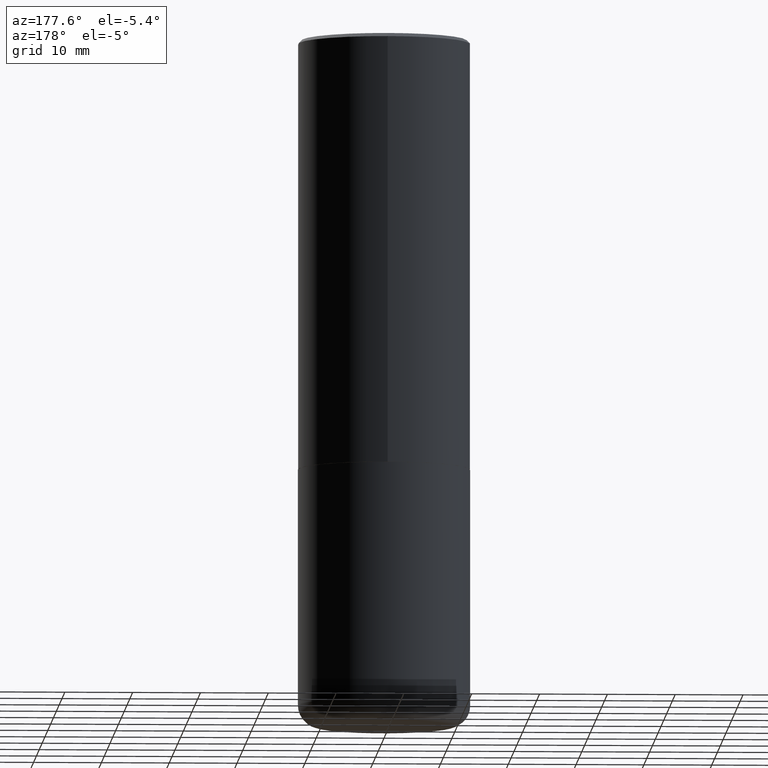
[diagram: clean part render]
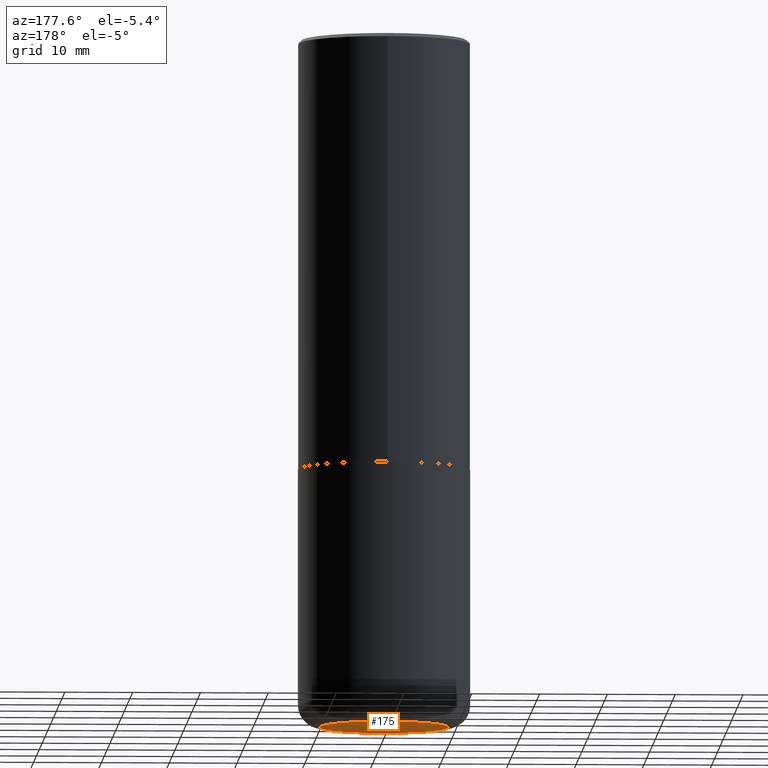
[diagram: same view with one face highlighted and labeled with its STEP entity id]
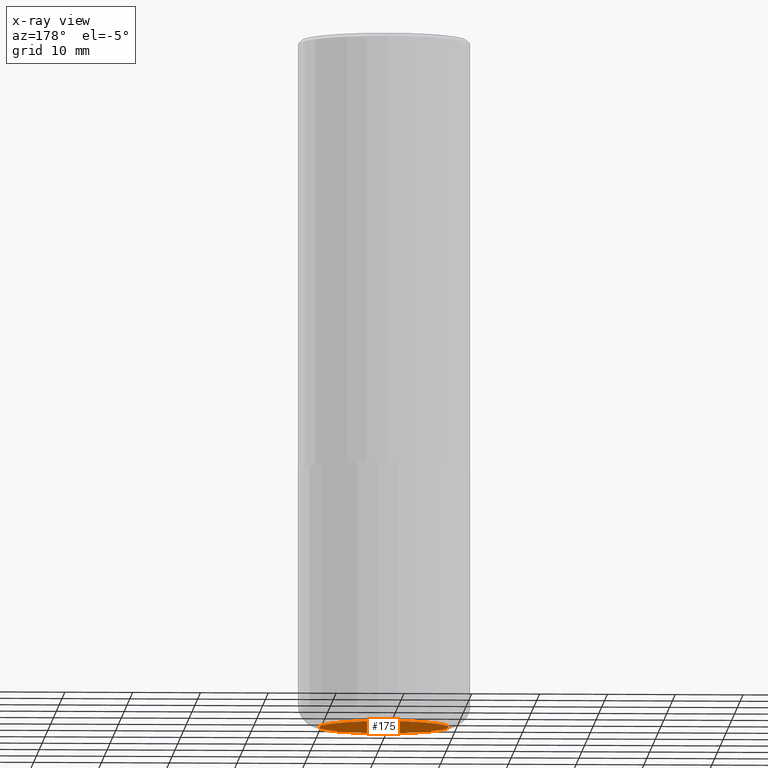
[diagram: x-ray of the same camera — body ghosted, the highlighted face saturated]
A machine part, auxiliary view. The second image highlights one B-rep face of the part: STEP entity #175.
The next image is the same camera in x-ray: the body ghosted, the highlighted face saturated — about 0% of this face is hidden behind the body in this view.
In plain terms, the highlighted planar face has unit normal (0, -0, -1).
Its self-contained STEP definition (entity closure, byte-faithful):
#49 = AXIS2_PLACEMENT_3D ( 'NONE', #301, #145, #305 ) ;
#71 = AXIS2_PLACEMENT_3D ( 'NONE', #203, #411, #200 ) ;
#143 = CARTESIAN_POINT ( 'NONE',  ( 0.3749999999999999445, -1.658453635950493392E-14, -4.000000000000000000 ) ) ;
#145 = DIRECTION ( 'NONE',  ( -2.445468806185136597E-29, 3.491481338843145583E-15, 1.000000000000000000 ) ) ;
#163 = EDGE_CURVE ( 'NONE', #315, #188, #394, .T. ) ;
#175 = ADVANCED_FACE ( 'NONE', ( #194 ), #319, .T. ) ;
#176 = CIRCLE ( 'NONE', #49, 0.3749999999999999445 ) ;
#179 = CARTESIAN_POINT ( 'NONE',  ( -0.3749999999999999445, -1.063908330274444739E-14, -4.000000000000000000 ) ) ;
#188 = VERTEX_POINT ( 'NONE', #143 ) ;
#194 = FACE_OUTER_BOUND ( 'NONE', #254, .T. ) ;
#200 = DIRECTION ( 'NONE',  ( 1.000000000000000000, -6.982962677686269077E-15, 0.000000000000000000 ) ) ;
#203 = CARTESIAN_POINT ( 'NONE',  ( 9.781875224740546387E-29, -1.396592535537258233E-14, -4.000000000000000000 ) ) ;
#234 = ORIENTED_EDGE ( 'NONE', *, *, #296, .F. ) ;
#252 = AXIS2_PLACEMENT_3D ( 'NONE', #326, #321, #386 ) ;
#254 = EDGE_LOOP ( 'NONE', ( #234, #310 ) ) ;
#296 = EDGE_CURVE ( 'NONE', #188, #315, #176, .T. ) ;
#301 = CARTESIAN_POINT ( 'NONE',  ( 9.781875224740546387E-29, -1.396592535537258233E-14, -4.000000000000000000 ) ) ;
#305 = DIRECTION ( 'NONE',  ( 1.000000000000000000, -6.982962677686269077E-15, 0.000000000000000000 ) ) ;
#310 = ORIENTED_EDGE ( 'NONE', *, *, #163, .F. ) ;
#315 = VERTEX_POINT ( 'NONE', #179 ) ;
#319 = PLANE ( 'NONE',  #252 ) ;
#321 = DIRECTION ( 'NONE',  ( 2.438088387897960049E-29, -3.491481338843145188E-15, -1.000000000000000000 ) ) ;
#326 = CARTESIAN_POINT ( 'NONE',  ( 9.781875224740546387E-29, -1.396592535537258233E-14, -4.000000000000000000 ) ) ;
#386 = DIRECTION ( 'NONE',  ( -1.000000000000000000, 6.982962677686265922E-15, -4.876176775795935793E-29 ) ) ;
#394 = CIRCLE ( 'NONE', #71, 0.3749999999999999445 ) ;
#411 = DIRECTION ( 'NONE',  ( -2.445468806185136597E-29, 3.491481338843145583E-15, 1.000000000000000000 ) ) ;